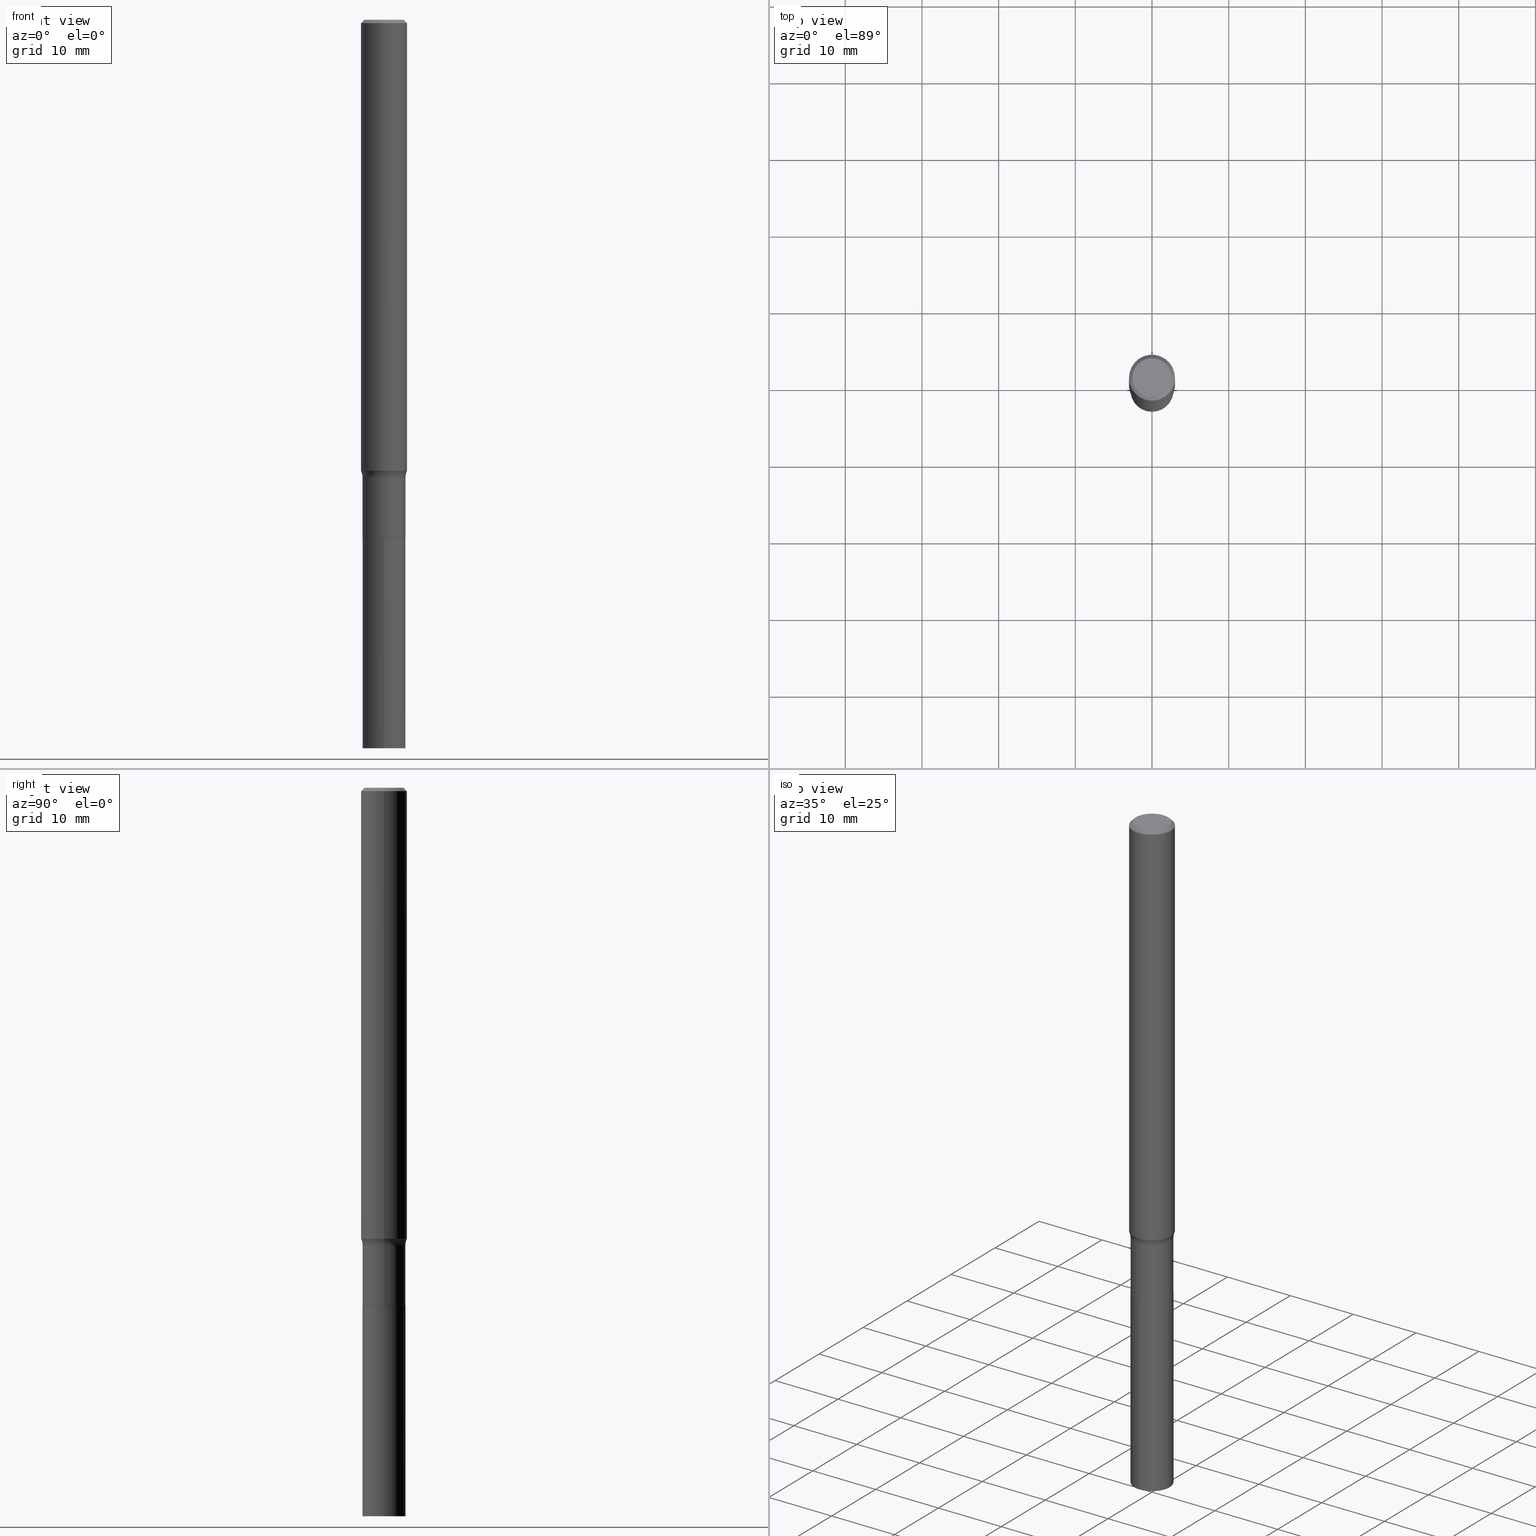
[diagram: canonical four-view strip — front | top / right | iso, engineering-drawing reading convention]
A machine part, canonical four-view strip (front | top / right | iso — engineering-drawing reading convention). The complete STEP part file that produces these views, byte-faithful:
ISO-10303-21;
HEADER;
FILE_DESCRIPTION (( 'STEP AP203' ),
    '1' );
FILE_NAME ('67842.STEP',
    '2024-04-19T16:41:17',
    ( '' ),
    ( '' ),
    'SwSTEP 2.0',
    'SolidWorks 2023',
    '' );
FILE_SCHEMA (( 'CONFIG_CONTROL_DESIGN' ));
ENDSEC;

DATA;
#1 = CARTESIAN_POINT ( 'NONE',  ( 0.000000000000000000, 0.000000000000000000, 0.000000000000000000 ) ) ;
#2 = PERSON_AND_ORGANIZATION ( #400, #102 ) ;
#3 = LINE ( 'NONE', #222, #147 ) ;
#4 = MANIFOLD_SOLID_BREP ( 'Body-Move/Copy2[1]', #71 ) ;
#5 = CARTESIAN_POINT ( 'NONE',  ( 9.139920139182118548E-29, -1.306832199932537301E-14, -3.740200000000000635 ) ) ;
#6 = ORIENTED_EDGE ( 'NONE', *, *, #265, .T. ) ;
#7 = CIRCLE ( 'NONE', #304, 0.1102500000000000008 ) ;
#8 = ADVANCED_FACE ( 'NONE', ( #72 ), #286, .T. ) ;
#9 = APPROVAL_PERSON_ORGANIZATION ( #2, #75, #213 ) ;
#10 = UNCERTAINTY_MEASURE_WITH_UNIT (LENGTH_MEASURE( 1.000000000000000082E-05 ), #232, 'distance_accuracy_value', 'NONE');
#11 = COORDINATED_UNIVERSAL_TIME_OFFSET ( 5, 0, .BEHIND. ) ;
#12 = EDGE_CURVE ( 'NONE', #459, #21, #337, .T. ) ;
#13 = DIRECTION ( 'NONE',  ( -2.445468806185136877E-29, 3.491481338843145188E-15, 1.000000000000000000 ) ) ;
#14 = LOCAL_TIME ( 12, 41, 17.00000000000000000, #259 ) ;
#15 = PERSON_AND_ORGANIZATION_ROLE ( 'creator' ) ;
#16 = CARTESIAN_POINT ( 'NONE',  ( -0.1181000000000000105, -3.234107581332223613E-15, -0.01771500000000011954 ) ) ;
#17 = CYLINDRICAL_SURFACE ( 'NONE', #365, 0.1102500000000000008 ) ;
#18 = EDGE_CURVE ( 'NONE', #115, #141, #454, .T. ) ;
#19 = DIRECTION ( 'NONE',  ( -2.445468806185136597E-29, 3.491481338843145583E-15, 1.000000000000000000 ) ) ;
#20 = APPROVAL_ROLE ( '' ) ;
#21 = VERTEX_POINT ( 'NONE', #148 ) ;
#22 = LINE ( 'NONE', #122, #207 ) ;
#23 = TOROIDAL_SURFACE ( 'NONE', #257, 0.1902499999999999747, 0.08000000000000002942 ) ;
#24 = CC_DESIGN_PERSON_AND_ORGANIZATION_ASSIGNMENT ( #97, #461, ( #86 ) ) ;
#25 = EDGE_LOOP ( 'NONE', ( #6, #319, #235, #336 ) ) ;
#26 = LINE ( 'NONE', #239, #468 ) ;
#27 = ORIENTED_EDGE ( 'NONE', *, *, #350, .F. ) ;
#28 = DIRECTION ( 'NONE',  ( 1.000000000000000000, -6.982962677686257244E-15, 0.000000000000000000 ) ) ;
#29 = CARTESIAN_POINT ( 'NONE',  ( -0.1181000000000002742, -7.245514541679521591E-15, -2.315540232929025333 ) ) ;
#30 = CARTESIAN_POINT ( 'NONE',  ( 6.498099711795145856E-29, -9.277564213574007753E-15, -2.657200000000000450 ) ) ;
#31 = DIRECTION ( 'NONE',  ( 2.445468806185136597E-29, -3.491481338843145583E-15, -1.000000000000000000 ) ) ;
#32 = CONICAL_SURFACE ( 'NONE', #92, 0.1181000000000000105, 0.7853981633974457255 ) ;
#33 = ORIENTED_EDGE ( 'NONE', *, *, #427, .T. ) ;
#34 = CARTESIAN_POINT ( 'NONE',  ( 6.498099711795145856E-29, -9.277564213574007753E-15, -2.657200000000000450 ) ) ;
#35 = ORIENTED_EDGE ( 'NONE', *, *, #265, .F. ) ;
#36 = DIRECTION ( 'NONE',  ( -1.000000000000000000, 7.105427357600995548E-15, 0.000000000000000000 ) ) ;
#37 = DIRECTION ( 'NONE',  ( -2.445468806185136597E-29, 3.491481338843145583E-15, 1.000000000000000000 ) ) ;
#38 = ORIENTED_EDGE ( 'NONE', *, *, #228, .T. ) ;
#39 = PRODUCT_RELATED_PRODUCT_CATEGORY ( 'detail', '', ( #240 ) ) ;
#40 = DIRECTION ( 'NONE',  ( 1.000000000000000000, -6.982962677686263555E-15, 4.883557194083111780E-29 ) ) ;
#41 = ORIENTED_EDGE ( 'NONE', *, *, #350, .T. ) ;
#42 = DIRECTION ( 'NONE',  ( 1.000000000000000000, -6.982962677686273021E-15, 0.000000000000000000 ) ) ;
#43 = APPROVAL ( #295, 'UNSPECIFIED' ) ;
#44 = CARTESIAN_POINT ( 'NONE',  ( 3.507850874923593654E-46, -5.008281372579124849E-32, -1.434428795841294606E-17 ) ) ;
#45 = ORIENTED_EDGE ( 'NONE', *, *, #136, .T. ) ;
#46 = ADVANCED_FACE ( 'NONE', ( #426 ), #54, .T. ) ;
#47 = SHAPE_DEFINITION_REPRESENTATION ( #176, #231 ) ;
#48 = AXIS2_PLACEMENT_3D ( 'NONE', #137, #65, #342 ) ;
#49 = DATE_TIME_ROLE ( 'creation_date' ) ;
#50 = EDGE_CURVE ( 'NONE', #238, #106, #364, .T. ) ;
#51 = CARTESIAN_POINT ( 'NONE',  ( 0.1181000000000000105, -8.865394841523550528E-16, -0.01771500000000011954 ) ) ;
#52 = DIRECTION ( 'NONE',  ( 0.7071067811864267805, -2.468850131080992517E-15, 0.7071067811866682540 ) ) ;
#53 = CARTESIAN_POINT ( 'NONE',  ( -3.796681794411323926E-29, -3.159427227388685348E-14, -3.740200000000000635 ) ) ;
#54 = CONICAL_SURFACE ( 'NONE', #369, 0.1097500000000000003, 0.7853981633972775267 ) ;
#55 = PRODUCT_DEFINITION_FORMATION_WITH_SPECIFIED_SOURCE ( 'ANY', '', #240, .NOT_KNOWN. ) ;
#56 = CARTESIAN_POINT ( 'NONE',  ( 6.498099711795145856E-29, -9.277564213574007753E-15, -2.657200000000000450 ) ) ;
#57 = ORIENTED_EDGE ( 'NONE', *, *, #377, .F. ) ;
#58 = PLANE ( 'NONE',  #351 ) ;
#59 = DIRECTION ( 'NONE',  ( -2.445468806185136597E-29, 3.491481338843145583E-15, 1.000000000000000000 ) ) ;
#60 = DIRECTION ( 'NONE',  ( -6.982962677686266711E-15, -1.000000000000000000, 3.491481338843145583E-15 ) ) ;
#61 = AXIS2_PLACEMENT_3D ( 'NONE', #415, #59, #103 ) ;
#62 = CARTESIAN_POINT ( 'NONE',  ( 5.662581409094595686E-29, -8.084665512612202155E-15, -2.315540232929025333 ) ) ;
#63 =( GEOMETRIC_REPRESENTATION_CONTEXT ( 3 ) GLOBAL_UNCERTAINTY_ASSIGNED_CONTEXT ( ( #10 ) ) GLOBAL_UNIT_ASSIGNED_CONTEXT ( ( #232, #198, #204 ) ) REPRESENTATION_CONTEXT ( 'NONE', 'WORKASPACE' ) );
#64 = LOCAL_TIME ( 12, 41, 17.00000000000000000, #362 ) ;
#65 = DIRECTION ( 'NONE',  ( -2.445468806185136597E-29, 3.491481338843145583E-15, 1.000000000000000000 ) ) ;
#66 = EDGE_CURVE ( 'NONE', #141, #21, #3, .T. ) ;
#67 = ORIENTED_EDGE ( 'NONE', *, *, #211, .F. ) ;
#68 = CARTESIAN_POINT ( 'NONE',  ( 0.1902499999999999747, -9.533838943845089210E-15, -2.350100000000000300 ) ) ;
#69 = DIRECTION ( 'NONE',  ( 1.000000000000000000, -6.982962677686266711E-15, 4.876176775795936353E-29 ) ) ;
#70 = LENGTH_MEASURE_WITH_UNIT ( LENGTH_MEASURE( 0.02539999999999999897 ), #307 );
#71 = CLOSED_SHELL ( 'NONE', ( #466, #341, #280, #457 ) ) ;
#72 = FACE_OUTER_BOUND ( 'NONE', #181, .T. ) ;
#73 = AXIS2_PLACEMENT_3D ( 'NONE', #34, #100, #169 ) ;
#74 = DIRECTION ( 'NONE',  ( 1.000000000000000000, -6.982962677686270655E-15, 0.000000000000000000 ) ) ;
#75 = APPROVAL ( #315, 'UNSPECIFIED' ) ;
#76 = EDGE_LOOP ( 'NONE', ( #171, #117, #389, #144 ) ) ;
#77 = ORIENTED_EDGE ( 'NONE', *, *, #228, .F. ) ;
#78 = VERTEX_POINT ( 'NONE', #441 ) ;
#79 = AXIS2_PLACEMENT_3D ( 'NONE', #379, #166, #36 ) ;
#80 = ORIENTED_EDGE ( 'NONE', *, *, #217, .T. ) ;
#81 = EDGE_CURVE ( 'NONE', #106, #212, #403, .T. ) ;
#82 = DIRECTION ( 'NONE',  ( 0.7071067811865456854, -7.319954787623249734E-15, -0.7071067811865493491 ) ) ;
#83 = AXIS2_PLACEMENT_3D ( 'NONE', #374, #19, #69 ) ;
#84 = ADVANCED_FACE ( 'NONE', ( #299 ), #134, .T. ) ;
#85 = AXIS2_PLACEMENT_3D ( 'NONE', #143, #273, #345 ) ;
#86 = SECURITY_CLASSIFICATION ( '', '', #264 ) ;
#87 = APPROVAL_ROLE ( '' ) ;
#88 = DIRECTION ( 'NONE',  ( -2.445468806185136597E-29, 3.491481338843145583E-15, 1.000000000000000000 ) ) ;
#89 = FACE_OUTER_BOUND ( 'NONE', #323, .T. ) ;
#90 = PERSON_AND_ORGANIZATION_ROLE ( 'creator' ) ;
#91 = DIRECTION ( 'NONE',  ( -6.982962677686266711E-15, -1.000000000000000000, 4.955733321839933614E-15 ) ) ;
#92 = AXIS2_PLACEMENT_3D ( 'NONE', #418, #309, #452 ) ;
#93 = CIRCLE ( 'NONE', #139, 0.1102500000000000008 ) ;
#94 = APPROVAL_STATUS ( 'not_yet_approved' ) ;
#95 = DIRECTION ( 'NONE',  ( -2.439354041908560263E-29, 3.500238029317971584E-15, 1.000000000000000000 ) ) ;
#96 = CARTESIAN_POINT ( 'NONE',  ( 6.498099711795145856E-29, -9.277564213574007753E-15, -2.657200000000000450 ) ) ;
#97 = PERSON_AND_ORGANIZATION ( #400, #102 ) ;
#98 = CC_DESIGN_PERSON_AND_ORGANIZATION_ASSIGNMENT ( #331, #128, ( #55 ) ) ;
#99 = ORIENTED_EDGE ( 'NONE', *, *, #325, .T. ) ;
#100 = DIRECTION ( 'NONE',  ( -2.439354041908560543E-29, 3.500238029317971584E-15, 1.000000000000000000 ) ) ;
#101 = EDGE_CURVE ( 'NONE', #155, #289, #398, .T. ) ;
#102 = ORGANIZATION ( 'UNSPECIFIED', 'UNSPECIFIED', '' ) ;
#103 = DIRECTION ( 'NONE',  ( 1.000000000000000000, -6.982962677686267499E-15, 0.000000000000000000 ) ) ;
#104 = ORIENTED_EDGE ( 'NONE', *, *, #66, .T. ) ;
#105 = CARTESIAN_POINT ( 'NONE',  ( 4.332147990156999371E-31, -6.185159191760674092E-17, -0.01771500000000011954 ) ) ;
#106 = VERTEX_POINT ( 'NONE', #303 ) ;
#107 = CARTESIAN_POINT ( 'NONE',  ( 0.000000000000000000, 0.000000000000000000, 0.000000000000000000 ) ) ;
#108 = ORIENTED_EDGE ( 'NONE', *, *, #360, .F. ) ;
#109 = PLANE ( 'NONE',  #266 ) ;
#110 = AXIS2_PLACEMENT_3D ( 'NONE', #208, #423, #250 ) ;
#111 = ORIENTED_EDGE ( 'NONE', *, *, #136, .F. ) ;
#112 = CIRCLE ( 'NONE', #159, 0.1102499999999999730 ) ;
#113 = CARTESIAN_POINT ( 'NONE',  ( -7.698716352148196691E-16, -0.1102500000000130875, -3.740200000000000191 ) ) ;
#114 = CARTESIAN_POINT ( 'NONE',  ( 0.1102499999999999869, -7.698716352149107826E-16, 5.375984895315018903E-30 ) ) ;
#115 = VERTEX_POINT ( 'NONE', #205 ) ;
#116 = DATE_AND_TIME ( #291, #406 ) ;
#117 = ORIENTED_EDGE ( 'NONE', *, *, #12, .T. ) ;
#118 = EDGE_CURVE ( 'NONE', #344, #78, #156, .T. ) ;
#119 = VERTEX_POINT ( 'NONE', #450 ) ;
#120 = LOCAL_TIME ( 12, 41, 17.00000000000000000, #11 ) ;
#121 = CC_DESIGN_SECURITY_CLASSIFICATION ( #86, ( #55 ) ) ;
#122 = CARTESIAN_POINT ( 'NONE',  ( -0.1181000000000001354, 8.391509709326792818E-16, -5.809262341591050090E-30 ) ) ;
#123 = CALENDAR_DATE ( 2024, 19, 4 ) ;
#124 = DIRECTION ( 'NONE',  ( -2.445468806185136597E-29, 3.491481338843145583E-15, 1.000000000000000000 ) ) ;
#125 = APPROVAL_DATE_TIME ( #327, #43 ) ;
#126 = DIRECTION ( 'NONE',  ( -2.439354041908560543E-29, 3.500238029317971584E-15, 1.000000000000000000 ) ) ;
#127 = DIRECTION ( 'NONE',  ( -1.000000000000000000, 6.982962677686267499E-15, 0.000000000000000000 ) ) ;
#128 = PERSON_AND_ORGANIZATION_ROLE ( 'design_supplier' ) ;
#129 = LINE ( 'NONE', #226, #249 ) ;
#130 = AXIS2_PLACEMENT_3D ( 'NONE', #105, #31, #127 ) ;
#131 = DIRECTION ( 'NONE',  ( 1.000000000000000000, -6.982962677686270655E-15, 0.000000000000000000 ) ) ;
#132 = ORIENTED_EDGE ( 'NONE', *, *, #18, .F. ) ;
#133 = CARTESIAN_POINT ( 'NONE',  ( 6.498099711795145856E-29, -9.277564213574007753E-15, -2.657200000000000450 ) ) ;
#134 = CYLINDRICAL_SURFACE ( 'NONE', #83, 0.1181000000000001354 ) ;
#135 = ORIENTED_EDGE ( 'NONE', *, *, #188, .T. ) ;
#136 = EDGE_CURVE ( 'NONE', #334, #212, #256, .T. ) ;
#137 = CARTESIAN_POINT ( 'NONE',  ( 6.496876977392053055E-29, -9.275818472904585460E-15, -2.656700000000000284 ) ) ;
#138 = ORIENTED_EDGE ( 'NONE', *, *, #338, .T. ) ;
#139 = AXIS2_PLACEMENT_3D ( 'NONE', #196, #404, #91 ) ;
#140 = FACE_OUTER_BOUND ( 'NONE', #178, .T. ) ;
#141 = VERTEX_POINT ( 'NONE', #380 ) ;
#142 = ORIENTED_EDGE ( 'NONE', *, *, #444, .F. ) ;
#143 = CARTESIAN_POINT ( 'NONE',  ( 9.139920139182118548E-29, -1.306832199932537301E-14, -3.740200000000000635 ) ) ;
#144 = ORIENTED_EDGE ( 'NONE', *, *, #188, .F. ) ;
#145 = PLANE ( 'NONE',  #436 ) ;
#146 = DIRECTION ( 'NONE',  ( 1.000000000000000000, -6.982962677686266711E-15, 4.876176775795936353E-29 ) ) ;
#147 = VECTOR ( 'NONE', #52, 39.37007874015748143 ) ;
#148 = CARTESIAN_POINT ( 'NONE',  ( 0.1102500000000000008, -1.004569010811949614E-14, -2.656700000000000284 ) ) ;
#149 = AXIS2_PLACEMENT_3D ( 'NONE', #1, #37, #146 ) ;
#150 = EDGE_LOOP ( 'NONE', ( #41, #138 ) ) ;
#151 = EDGE_CURVE ( 'NONE', #289, #155, #317, .T. ) ;
#152 = CARTESIAN_POINT ( 'NONE',  ( 5.747096241415690460E-29, -8.205330294415276873E-15, -2.350100000000000300 ) ) ;
#153 = ORIENTED_EDGE ( 'NONE', *, *, #12, .F. ) ;
#154 = LINE ( 'NONE', #371, #445 ) ;
#155 = VERTEX_POINT ( 'NONE', #29 ) ;
#156 = CIRCLE ( 'NONE', #199, 0.1102499999999999730 ) ;
#157 = AXIS2_PLACEMENT_3D ( 'NONE', #353, #172, #414 ) ;
#158 = PERSON_AND_ORGANIZATION ( #400, #102 ) ;
#159 = AXIS2_PLACEMENT_3D ( 'NONE', #152, #422, #74 ) ;
#160 = DIRECTION ( 'NONE',  ( -2.439354041908560543E-29, 3.500238029317971584E-15, 1.000000000000000000 ) ) ;
#161 = DIRECTION ( 'NONE',  ( -6.982962677686265922E-15, -1.000000000000000000, 3.500238029317971584E-15 ) ) ;
#162 = CARTESIAN_POINT ( 'NONE',  ( 0.1181000000000000105, -8.720764054544248225E-16, -0.01771500000000011954 ) ) ;
#163 = DIRECTION ( 'NONE',  ( -6.982962677686266711E-15, -1.000000000000000000, 4.955733321839933614E-15 ) ) ;
#164 = EDGE_LOOP ( 'NONE', ( #277, #244, #210, #45 ) ) ;
#165 = ADVANCED_FACE ( 'NONE', ( #170 ), #32, .T. ) ;
#166 = DIRECTION ( 'NONE',  ( 7.105427357601001859E-15, 1.000000000000000000, -3.491481338843145583E-15 ) ) ;
#167 = DIRECTION ( 'NONE',  ( -2.445468806185136597E-29, 3.491481338843145583E-15, 1.000000000000000000 ) ) ;
#168 = ORIENTED_EDGE ( 'NONE', *, *, #440, .F. ) ;
#169 = DIRECTION ( 'NONE',  ( -6.982962677686266711E-15, -1.000000000000000000, 4.955733321839933614E-15 ) ) ;
#170 = FACE_OUTER_BOUND ( 'NONE', #164, .T. ) ;
#171 = ORIENTED_EDGE ( 'NONE', *, *, #217, .F. ) ;
#172 = DIRECTION ( 'NONE',  ( -2.445468806185136597E-29, 3.491481338843145583E-15, 1.000000000000000000 ) ) ;
#173 = AXIS2_PLACEMENT_3D ( 'NONE', #285, #185, #320 ) ;
#174 = AXIS2_PLACEMENT_3D ( 'NONE', #133, #412, #433 ) ;
#175 = DIRECTION ( 'NONE',  ( -2.439354041908560543E-29, 3.500238029317971584E-15, 1.000000000000000000 ) ) ;
#176 = PRODUCT_DEFINITION_SHAPE ( 'NONE', 'NONE',  #363 ) ;
#177 = ADVANCED_FACE ( 'NONE', ( #140 ), #348, .T. ) ;
#178 = EDGE_LOOP ( 'NONE', ( #293, #308, #384, #413 ) ) ;
#179 = LINE ( 'NONE', #242, #392 ) ;
#180 = LINE ( 'NONE', #114, #292 ) ;
#181 = EDGE_LOOP ( 'NONE', ( #241, #38, #168, #108 ) ) ;
#182 = CC_DESIGN_PERSON_AND_ORGANIZATION_ASSIGNMENT ( #297, #15, ( #55 ) ) ;
#183 = ORIENTED_EDGE ( 'NONE', *, *, #377, .T. ) ;
#184 = ADVANCED_FACE ( 'NONE', ( #263 ), #435, .F. ) ;
#185 = DIRECTION ( 'NONE',  ( -2.445468806185136597E-29, 3.491481338843145583E-15, 1.000000000000000000 ) ) ;
#186 = DIRECTION ( 'NONE',  ( -1.000000000000000000, 6.982962677686265922E-15, -4.876176775795935793E-29 ) ) ;
#187 = ORIENTED_EDGE ( 'NONE', *, *, #360, .T. ) ;
#188 = EDGE_CURVE ( 'NONE', #78, #344, #112, .T. ) ;
#189 = VECTOR ( 'NONE', #13, 39.37007874015748143 ) ;
#190 = DIRECTION ( 'NONE',  ( -2.445468806185136877E-29, 3.491481338843145188E-15, 1.000000000000000000 ) ) ;
#191 = CLOSED_SHELL ( 'NONE', ( #237, #177, #8, #302, #206, #294, #184, #84, #165, #370, #437, #46 ) ) ;
#192 = CC_DESIGN_APPROVAL ( #43, ( #363 ) ) ;
#193 = DIRECTION ( 'NONE',  ( 1.000000000000000000, -6.982962677686266711E-15, 4.875668750515085695E-29 ) ) ;
#194 = FACE_OUTER_BOUND ( 'NONE', #416, .T. ) ;
#195 = ORIENTED_EDGE ( 'NONE', *, *, #18, .T. ) ;
#196 = CARTESIAN_POINT ( 'NONE',  ( 6.498099711795145856E-29, -9.277564213574007753E-15, -2.657200000000000450 ) ) ;
#197 = ORIENTED_EDGE ( 'NONE', *, *, #385, .T. ) ;
#198 =( NAMED_UNIT ( * ) PLANE_ANGLE_UNIT ( ) SI_UNIT ( $, .RADIAN. ) );
#199 = AXIS2_PLACEMENT_3D ( 'NONE', #340, #167, #131 ) ;
#200 = AXIS2_PLACEMENT_3D ( 'NONE', #53, #230, #161 ) ;
#201 = FACE_OUTER_BOUND ( 'NONE', #270, .T. ) ;
#202 = DIRECTION ( 'NONE',  ( -2.445468806185136597E-29, 3.491481338843145583E-15, 1.000000000000000000 ) ) ;
#203 = VERTEX_POINT ( 'NONE', #354 ) ;
#204 =( NAMED_UNIT ( * ) SI_UNIT ( $, .STERADIAN. ) SOLID_ANGLE_UNIT ( ) );
#205 = CARTESIAN_POINT ( 'NONE',  ( -0.1097500000000000003, -8.495094333903187286E-15, -2.657200000000000450 ) ) ;
#206 = ADVANCED_FACE ( 'NONE', ( #287 ), #429, .T. ) ;
#207 = VECTOR ( 'NONE', #328, 39.37007874015748143 ) ;
#208 = CARTESIAN_POINT ( 'NONE',  ( 0.000000000000000000, 0.000000000000000000, 0.000000000000000000 ) ) ;
#209 = DIRECTION ( 'NONE',  ( -2.439354041908560263E-29, 3.500238029317971584E-15, 1.000000000000000000 ) ) ;
#210 = ORIENTED_EDGE ( 'NONE', *, *, #453, .T. ) ;
#211 = EDGE_CURVE ( 'NONE', #21, #344, #180, .T. ) ;
#212 = VERTEX_POINT ( 'NONE', #51 ) ;
#213 = APPROVAL_ROLE ( '' ) ;
#214 = CIRCLE ( 'NONE', #432, 0.08000000000000002942 ) ;
#215 = DIRECTION ( 'NONE',  ( -2.445468806185136597E-29, 3.491481338843145583E-15, 1.000000000000000000 ) ) ;
#216 = EDGE_LOOP ( 'NONE', ( #274, #195, #104, #153 ) ) ;
#217 = EDGE_CURVE ( 'NONE', #459, #78, #252, .T. ) ;
#218 = AXIS2_PLACEMENT_3D ( 'NONE', #361, #247, #313 ) ;
#219 = CIRCLE ( 'NONE', #48, 0.1102500000000000008 ) ;
#220 = CALENDAR_DATE ( 2024, 19, 4 ) ;
#221 = FACE_OUTER_BOUND ( 'NONE', #359, .T. ) ;
#222 = CARTESIAN_POINT ( 'NONE',  ( 0.1097500000000000003, -1.004394436745007543E-14, -2.657200000000000450 ) ) ;
#223 = DIRECTION ( 'NONE',  ( 1.000000000000000000, -6.982962677686263555E-15, 4.883557194083111780E-29 ) ) ;
#224 = APPLICATION_CONTEXT ( 'configuration controlled 3d designs of mechanical parts and assemblies' ) ;
#225 = CIRCLE ( 'NONE', #157, 0.1181000000000000105 ) ;
#226 = CARTESIAN_POINT ( 'NONE',  ( 0.1181000000000001354, -8.246878922347490515E-16, 5.758764772215007447E-30 ) ) ;
#227 = EDGE_LOOP ( 'NONE', ( #357, #99 ) ) ;
#228 = EDGE_CURVE ( 'NONE', #155, #334, #22, .T. ) ;
#229 = FACE_OUTER_BOUND ( 'NONE', #227, .T. ) ;
#230 = DIRECTION ( 'NONE',  ( -2.439354041908560263E-29, 3.500238029317971584E-15, 1.000000000000000000 ) ) ;
#231 = ADVANCED_BREP_SHAPE_REPRESENTATION ( '67842', ( #4, #312, #405 ), #63 ) ;
#232 =( CONVERSION_BASED_UNIT ( 'INCH', #70 ) LENGTH_UNIT ( ) NAMED_UNIT ( #253 ) );
#233 = CIRCLE ( 'NONE', #85, 0.1102500000000000285 ) ;
#234 = CARTESIAN_POINT ( 'NONE',  ( 5.662581409094595686E-29, -8.084665512612202155E-15, -2.315540232929025333 ) ) ;
#235 = ORIENTED_EDGE ( 'NONE', *, *, #390, .F. ) ;
#236 = CYLINDRICAL_SURFACE ( 'NONE', #73, 0.1102500000000000008 ) ;
#237 = ADVANCED_FACE ( 'NONE', ( #394 ), #438, .T. ) ;
#238 = VERTEX_POINT ( 'NONE', #301 ) ;
#239 = CARTESIAN_POINT ( 'NONE',  ( -7.698716352148458988E-16, -0.1102500000000092711, -2.657199999999999562 ) ) ;
#240 = PRODUCT ( '67842', '67842', '', ( #251 ) ) ;
#241 = ORIENTED_EDGE ( 'NONE', *, *, #151, .T. ) ;
#242 = CARTESIAN_POINT ( 'NONE',  ( -0.1181000000000000105, 7.628363003171413738E-16, -0.01771500000000011954 ) ) ;
#243 = AXIS2_PLACEMENT_3D ( 'NONE', #5, #175, #424 ) ;
#244 = ORIENTED_EDGE ( 'NONE', *, *, #50, .F. ) ;
#245 = EDGE_LOOP ( 'NONE', ( #352, #80, #388, #67 ) ) ;
#246 = APPROVAL_DATE_TIME ( #116, #75 ) ;
#247 = DIRECTION ( 'NONE',  ( -2.445468806185136597E-29, 3.491481338843145583E-15, 1.000000000000000000 ) ) ;
#248 = AXIS2_PLACEMENT_3D ( 'NONE', #355, #316, #465 ) ;
#249 = VECTOR ( 'NONE', #267, 39.37007874015748143 ) ;
#250 = DIRECTION ( 'NONE',  ( 1.000000000000000000, -6.982962677686266711E-15, 4.876176775795936353E-29 ) ) ;
#251 = MECHANICAL_CONTEXT ( 'NONE', #224, 'mechanical' ) ;
#252 = LINE ( 'NONE', #442, #189 ) ;
#253 = DIMENSIONAL_EXPONENTS ( 1.000000000000000000, 0.000000000000000000, 0.000000000000000000, 0.000000000000000000, 0.000000000000000000, 0.000000000000000000, 0.000000000000000000 ) ;
#254 = CC_DESIGN_DATE_AND_TIME_ASSIGNMENT ( #255, #49, ( #363 ) ) ;
#255 = DATE_AND_TIME ( #123, #456 ) ;
#256 = CIRCLE ( 'NONE', #61, 0.1181000000000000105 ) ;
#257 = AXIS2_PLACEMENT_3D ( 'NONE', #330, #271, #223 ) ;
#258 = EDGE_CURVE ( 'NONE', #119, #203, #262, .T. ) ;
#259 = COORDINATED_UNIVERSAL_TIME_OFFSET ( 5, 0, .BEHIND. ) ;
#260 = DIRECTION ( 'NONE',  ( 1.000000000000000000, -6.982962677686266711E-15, 4.876176775795936353E-29 ) ) ;
#261 = DATE_AND_TIME ( #300, #120 ) ;
#262 = LINE ( 'NONE', #439, #276 ) ;
#263 = FACE_OUTER_BOUND ( 'NONE', #455, .T. ) ;
#264 = SECURITY_CLASSIFICATION_LEVEL ( 'unclassified' ) ;
#265 = EDGE_CURVE ( 'NONE', #141, #115, #318, .T. ) ;
#266 = AXIS2_PLACEMENT_3D ( 'NONE', #30, #383, #449 ) ;
#267 = DIRECTION ( 'NONE',  ( -2.445468806185136877E-29, 3.491481338843145188E-15, 1.000000000000000000 ) ) ;
#268 = APPROVAL ( #94, 'UNSPECIFIED' ) ;
#269 = CC_DESIGN_APPROVAL ( #268, ( #55 ) ) ;
#270 = EDGE_LOOP ( 'NONE', ( #35, #132 ) ) ;
#271 = DIRECTION ( 'NONE',  ( -2.445468806185136597E-29, 3.491481338843145583E-15, 1.000000000000000000 ) ) ;
#272 = ORIENTED_EDGE ( 'NONE', *, *, #101, .F. ) ;
#273 = DIRECTION ( 'NONE',  ( -2.439354041908560543E-29, 3.500238029317971584E-15, 1.000000000000000000 ) ) ;
#274 = ORIENTED_EDGE ( 'NONE', *, *, #321, .F. ) ;
#275 = CARTESIAN_POINT ( 'NONE',  ( 6.498099711795145856E-29, -9.277564213574007753E-15, -2.657200000000000450 ) ) ;
#276 = VECTOR ( 'NONE', #95, 39.37007874015748143 ) ;
#277 = ORIENTED_EDGE ( 'NONE', *, *, #81, .F. ) ;
#278 = DIRECTION ( 'NONE',  ( -2.445468806185136597E-29, 3.491481338843145583E-15, 1.000000000000000000 ) ) ;
#279 = APPLICATION_PROTOCOL_DEFINITION ( 'international standard', 'config_control_design', 1994, #224 ) ;
#280 = ADVANCED_FACE ( 'NONE', ( #221 ), #17, .T. ) ;
#281 = CALENDAR_DATE ( 2024, 19, 4 ) ;
#282 = ORIENTED_EDGE ( 'NONE', *, *, #410, .F. ) ;
#283 = CARTESIAN_POINT ( 'NONE',  ( -0.1102500000000000008, -7.957201017484421002E-15, -2.656700000000000284 ) ) ;
#284 = CIRCLE ( 'NONE', #243, 0.1102500000000000285 ) ;
#285 = CARTESIAN_POINT ( 'NONE',  ( 7.015701749847187307E-46, -1.001656274515824970E-31, -2.868857591682589212E-17 ) ) ;
#286 = CYLINDRICAL_SURFACE ( 'NONE', #110, 0.1181000000000001354 ) ;
#287 = FACE_OUTER_BOUND ( 'NONE', #245, .T. ) ;
#288 = CC_DESIGN_DATE_AND_TIME_ASSIGNMENT ( #434, #387, ( #86 ) ) ;
#289 = VERTEX_POINT ( 'NONE', #296 ) ;
#290 = DIRECTION ( 'NONE',  ( -6.982962677686266711E-15, -1.000000000000000000, 4.955733321839933614E-15 ) ) ;
#291 = CALENDAR_DATE ( 2024, 19, 4 ) ;
#292 = VECTOR ( 'NONE', #190, 39.37007874015748143 ) ;
#293 = ORIENTED_EDGE ( 'NONE', *, *, #325, .F. ) ;
#294 = ADVANCED_FACE ( 'NONE', ( #447 ), #443, .T. ) ;
#295 = APPROVAL_STATUS ( 'not_yet_approved' ) ;
#296 = CARTESIAN_POINT ( 'NONE',  ( 0.1181000000000002742, -8.909353404846951995E-15, -2.315540232929025333 ) ) ;
#297 = PERSON_AND_ORGANIZATION ( #400, #102 ) ;
#298 = CARTESIAN_POINT ( 'NONE',  ( 0.1102499999999999730, -8.975201929630187557E-15, -2.350100000000000300 ) ) ;
#299 = FACE_OUTER_BOUND ( 'NONE', #428, .T. ) ;
#300 = CALENDAR_DATE ( 2024, 19, 4 ) ;
#301 = CARTESIAN_POINT ( 'NONE',  ( -0.1003850000000000159, 7.319105043583386689E-16, -2.868857591683090262E-17 ) ) ;
#302 = ADVANCED_FACE ( 'NONE', ( #194 ), #23, .F. ) ;
#303 = CARTESIAN_POINT ( 'NONE',  ( 0.1003850000000000159, -7.803837484803601317E-16, -2.868857591682071522E-17 ) ) ;
#304 = AXIS2_PLACEMENT_3D ( 'NONE', #56, #126, #163 ) ;
#305 = DIRECTION ( 'NONE',  ( 2.438088387897960049E-29, -3.491481338843145188E-15, -1.000000000000000000 ) ) ;
#306 = CC_DESIGN_APPROVAL ( #75, ( #86 ) ) ;
#307 =( LENGTH_UNIT ( ) NAMED_UNIT ( * ) SI_UNIT ( $, .METRE. ) );
#308 = ORIENTED_EDGE ( 'NONE', *, *, #81, .T. ) ;
#309 = DIRECTION ( 'NONE',  ( 2.445468806185136597E-29, -3.491481338843145583E-15, -1.000000000000000000 ) ) ;
#310 = ORIENTED_EDGE ( 'NONE', *, *, #427, .F. ) ;
#311 = APPROVAL_PERSON_ORGANIZATION ( #401, #268, #87 ) ;
#312 = MANIFOLD_SOLID_BREP ( 'Body-Move/Copy2[2]', #191 ) ;
#313 = DIRECTION ( 'NONE',  ( 1.000000000000000000, -6.982962677686269077E-15, 0.000000000000000000 ) ) ;
#314 = DIRECTION ( 'NONE',  ( -0.7071067811865456854, 2.468850131082237733E-15, -0.7071067811865493491 ) ) ;
#315 = APPROVAL_STATUS ( 'not_yet_approved' ) ;
#316 = DIRECTION ( 'NONE',  ( -2.445468806185136597E-29, 3.491481338843145583E-15, 1.000000000000000000 ) ) ;
#317 = CIRCLE ( 'NONE', #431, 0.1181000000000002742 ) ;
#318 = CIRCLE ( 'NONE', #339, 0.1097500000000000003 ) ;
#319 = ORIENTED_EDGE ( 'NONE', *, *, #321, .T. ) ;
#320 = DIRECTION ( 'NONE',  ( 1.000000000000000000, -6.982962677686266711E-15, 4.875668750515085695E-29 ) ) ;
#321 = EDGE_CURVE ( 'NONE', #115, #459, #154, .T. ) ;
#322 = CARTESIAN_POINT ( 'NONE',  ( -7.698716352148458988E-16, -0.1102500000000092711, -2.657199999999999562 ) ) ;
#323 = EDGE_LOOP ( 'NONE', ( #57, #310 ) ) ;
#324 = CIRCLE ( 'NONE', #79, 0.08000000000000002942 ) ;
#325 = EDGE_CURVE ( 'NONE', #106, #238, #425, .T. ) ;
#326 = COORDINATED_UNIVERSAL_TIME_OFFSET ( 5, 0, .BEHIND. ) ;
#327 = DATE_AND_TIME ( #220, #14 ) ;
#328 = DIRECTION ( 'NONE',  ( -2.445468806185136877E-29, 3.491481338843145188E-15, 1.000000000000000000 ) ) ;
#329 = APPROVAL_DATE_TIME ( #261, #268 ) ;
#330 = CARTESIAN_POINT ( 'NONE',  ( 5.747096241415690460E-29, -8.205330294415276873E-15, -2.350100000000000300 ) ) ;
#331 = PERSON_AND_ORGANIZATION ( #400, #102 ) ;
#332 = CARTESIAN_POINT ( 'NONE',  ( 7.015701749847187307E-46, -1.001656274515824970E-31, -2.868857591682589212E-17 ) ) ;
#333 = DIRECTION ( 'NONE',  ( 1.000000000000000000, -6.982962677686273021E-15, 0.000000000000000000 ) ) ;
#334 = VERTEX_POINT ( 'NONE', #16 ) ;
#335 = DIRECTION ( 'NONE',  ( -0.7071067811864267805, 7.493145998869918709E-15, 0.7071067811866682540 ) ) ;
#336 = ORIENTED_EDGE ( 'NONE', *, *, #66, .F. ) ;
#337 = CIRCLE ( 'NONE', #218, 0.1102500000000000008 ) ;
#338 = EDGE_CURVE ( 'NONE', #203, #375, #7, .T. ) ;
#339 = AXIS2_PLACEMENT_3D ( 'NONE', #96, #88, #373 ) ;
#340 = CARTESIAN_POINT ( 'NONE',  ( 5.747096241415690460E-29, -8.205330294415276873E-15, -2.350100000000000300 ) ) ;
#341 = ADVANCED_FACE ( 'NONE', ( #89 ), #367, .F. ) ;
#342 = DIRECTION ( 'NONE',  ( 1.000000000000000000, -6.982962677686269077E-15, 0.000000000000000000 ) ) ;
#343 = DIRECTION ( 'NONE',  ( 1.000000000000000000, -6.982962677686273021E-15, 0.000000000000000000 ) ) ;
#344 = VERTEX_POINT ( 'NONE', #298 ) ;
#345 = DIRECTION ( 'NONE',  ( -6.982962677686266711E-15, -1.000000000000000000, 4.955733321839932036E-15 ) ) ;
#346 = DIRECTION ( 'NONE',  ( -2.445468806185136597E-29, 3.491481338843145583E-15, 1.000000000000000000 ) ) ;
#347 = ORIENTED_EDGE ( 'NONE', *, *, #118, .T. ) ;
#348 = CONICAL_SURFACE ( 'NONE', #130, 0.1181000000000000105, 0.7853981633974457255 ) ;
#349 = DIRECTION ( 'NONE',  ( 0.000000000000000000, 0.000000000000000000, 1.000000000000000000 ) ) ;
#350 = EDGE_CURVE ( 'NONE', #375, #203, #93, .T. ) ;
#351 = AXIS2_PLACEMENT_3D ( 'NONE', #44, #305, #186 ) ;
#352 = ORIENTED_EDGE ( 'NONE', *, *, #390, .T. ) ;
#353 = CARTESIAN_POINT ( 'NONE',  ( 4.332147990156999371E-31, -6.185159191760674092E-17, -0.01771500000000011954 ) ) ;
#354 = CARTESIAN_POINT ( 'NONE',  ( 7.833733661756019683E-16, 0.1102499999999907165, -2.657200000000000895 ) ) ;
#355 = CARTESIAN_POINT ( 'NONE',  ( 6.498099711795145856E-29, -9.277564213574007753E-15, -2.657200000000000450 ) ) ;
#356 = COORDINATED_UNIVERSAL_TIME_OFFSET ( 5, 0, .BEHIND. ) ;
#357 = ORIENTED_EDGE ( 'NONE', *, *, #50, .T. ) ;
#358 = APPROVAL_PERSON_ORGANIZATION ( #158, #43, #20 ) ;
#359 = EDGE_LOOP ( 'NONE', ( #372, #33, #393, #409 ) ) ;
#360 = EDGE_CURVE ( 'NONE', #289, #212, #129, .T. ) ;
#361 = CARTESIAN_POINT ( 'NONE',  ( 6.496876977392053055E-29, -9.275818472904585460E-15, -2.656700000000000284 ) ) ;
#362 = COORDINATED_UNIVERSAL_TIME_OFFSET ( 5, 0, .BEHIND. ) ;
#363 = PRODUCT_DEFINITION ( 'UNKNOWN', '', #55, #396 ) ;
#364 = CIRCLE ( 'NONE', #173, 0.1003850000000000159 ) ;
#365 = AXIS2_PLACEMENT_3D ( 'NONE', #366, #160, #290 ) ;
#366 = CARTESIAN_POINT ( 'NONE',  ( 6.498099711795145856E-29, -9.277564213574007753E-15, -2.657200000000000450 ) ) ;
#367 = PLANE ( 'NONE',  #200 ) ;
#368 = CC_DESIGN_PERSON_AND_ORGANIZATION_ASSIGNMENT ( #463, #397, ( #240 ) ) ;
#369 = AXIS2_PLACEMENT_3D ( 'NONE', #391, #215, #42 ) ;
#370 = ADVANCED_FACE ( 'NONE', ( #229 ), #58, .F. ) ;
#371 = CARTESIAN_POINT ( 'NONE',  ( -0.1097500000000000003, -8.497743561077297698E-15, -2.657200000000000450 ) ) ;
#372 = ORIENTED_EDGE ( 'NONE', *, *, #258, .F. ) ;
#373 = DIRECTION ( 'NONE',  ( 1.000000000000000000, -6.982962677686273021E-15, 0.000000000000000000 ) ) ;
#374 = CARTESIAN_POINT ( 'NONE',  ( 0.000000000000000000, 0.000000000000000000, 0.000000000000000000 ) ) ;
#375 = VERTEX_POINT ( 'NONE', #322 ) ;
#376 = DIRECTION ( 'NONE',  ( 6.982962677686265922E-15, 1.000000000000000000, -3.500238029317971584E-15 ) ) ;
#377 = EDGE_CURVE ( 'NONE', #382, #119, #284, .T. ) ;
#378 = AXIS2_PLACEMENT_3D ( 'NONE', #62, #346, #333 ) ;
#379 = CARTESIAN_POINT ( 'NONE',  ( -0.1902499999999999747, -6.853522739631686844E-15, -2.350100000000000300 ) ) ;
#380 = CARTESIAN_POINT ( 'NONE',  ( 0.1097500000000000003, -1.004394436745007543E-14, -2.657200000000000450 ) ) ;
#381 = DIRECTION ( 'NONE',  ( 2.439354041908560263E-29, -3.500238029317971584E-15, -1.000000000000000000 ) ) ;
#382 = VERTEX_POINT ( 'NONE', #113 ) ;
#383 = DIRECTION ( 'NONE',  ( -2.438088387897960049E-29, 3.491481338843145188E-15, 1.000000000000000000 ) ) ;
#384 = ORIENTED_EDGE ( 'NONE', *, *, #440, .T. ) ;
#385 = EDGE_CURVE ( 'NONE', #289, #344, #214, .T. ) ;
#386 = AXIS2_PLACEMENT_3D ( 'NONE', #458, #278, #40 ) ;
#387 = DATE_TIME_ROLE ( 'classification_date' ) ;
#388 = ORIENTED_EDGE ( 'NONE', *, *, #118, .F. ) ;
#389 = ORIENTED_EDGE ( 'NONE', *, *, #211, .T. ) ;
#390 = EDGE_CURVE ( 'NONE', #21, #459, #219, .T. ) ;
#391 = CARTESIAN_POINT ( 'NONE',  ( 6.498099711795145856E-29, -9.277564213574007753E-15, -2.657200000000000450 ) ) ;
#392 = VECTOR ( 'NONE', #314, 39.37007874015748143 ) ;
#393 = ORIENTED_EDGE ( 'NONE', *, *, #444, .T. ) ;
#394 = FACE_OUTER_BOUND ( 'NONE', #25, .T. ) ;
#395 = PERSON_AND_ORGANIZATION ( #400, #102 ) ;
#396 = DESIGN_CONTEXT ( 'detailed design', #421, 'design' ) ;
#397 = PERSON_AND_ORGANIZATION_ROLE ( 'design_owner' ) ;
#398 = CIRCLE ( 'NONE', #378, 0.1181000000000002742 ) ;
#399 = AXIS2_PLACEMENT_3D ( 'NONE', #332, #402, #193 ) ;
#400 = PERSON ( 'UNSPECIFIED', 'UNSPECIFIED', 'UNSPECIFIED', ('UNSPECIFIED'), ('UNSPECIFIED'), ('UNSPECIFIED') ) ;
#401 = PERSON_AND_ORGANIZATION ( #400, #102 ) ;
#402 = DIRECTION ( 'NONE',  ( -2.445468806185136597E-29, 3.491481338843145583E-15, 1.000000000000000000 ) ) ;
#403 = LINE ( 'NONE', #162, #467 ) ;
#404 = DIRECTION ( 'NONE',  ( -2.439354041908560543E-29, 3.500238029317971584E-15, 1.000000000000000000 ) ) ;
#405 = AXIS2_PLACEMENT_3D ( 'NONE', #107, #349, #420 ) ;
#406 = LOCAL_TIME ( 12, 41, 17.00000000000000000, #356 ) ;
#407 = CARTESIAN_POINT ( 'NONE',  ( 0.000000000000000000, 0.000000000000000000, 0.000000000000000000 ) ) ;
#408 = CC_DESIGN_PERSON_AND_ORGANIZATION_ASSIGNMENT ( #395, #90, ( #363 ) ) ;
#409 = ORIENTED_EDGE ( 'NONE', *, *, #338, .F. ) ;
#410 = EDGE_CURVE ( 'NONE', #155, #78, #324, .T. ) ;
#411 = APPLICATION_PROTOCOL_DEFINITION ( 'international standard', 'config_control_design', 1994, #421 ) ;
#412 = DIRECTION ( 'NONE',  ( -2.445468806185136597E-29, 3.491481338843145583E-15, 1.000000000000000000 ) ) ;
#413 = ORIENTED_EDGE ( 'NONE', *, *, #453, .F. ) ;
#414 = DIRECTION ( 'NONE',  ( 1.000000000000000000, -6.982962677686267499E-15, 0.000000000000000000 ) ) ;
#415 = CARTESIAN_POINT ( 'NONE',  ( 4.332147990156999371E-31, -6.185159191760674092E-17, -0.01771500000000011954 ) ) ;
#416 = EDGE_LOOP ( 'NONE', ( #272, #462, #135, #448 ) ) ;
#417 = AXIS2_PLACEMENT_3D ( 'NONE', #407, #124, #260 ) ;
#418 = CARTESIAN_POINT ( 'NONE',  ( 4.332147990156999371E-31, -6.185159191760674092E-17, -0.01771500000000011954 ) ) ;
#419 = ORIENTED_EDGE ( 'NONE', *, *, #101, .T. ) ;
#420 = DIRECTION ( 'NONE',  ( 1.000000000000000000, 0.000000000000000000, 0.000000000000000000 ) ) ;
#421 = APPLICATION_CONTEXT ( 'configuration controlled 3d designs of mechanical parts and assemblies' ) ;
#422 = DIRECTION ( 'NONE',  ( -2.445468806185136597E-29, 3.491481338843145583E-15, 1.000000000000000000 ) ) ;
#423 = DIRECTION ( 'NONE',  ( -2.445468806185136597E-29, 3.491481338843145583E-15, 1.000000000000000000 ) ) ;
#424 = DIRECTION ( 'NONE',  ( -6.982962677686266711E-15, -1.000000000000000000, 4.955733321839932036E-15 ) ) ;
#425 = CIRCLE ( 'NONE', #399, 0.1003850000000000159 ) ;
#426 = FACE_OUTER_BOUND ( 'NONE', #216, .T. ) ;
#427 = EDGE_CURVE ( 'NONE', #119, #382, #233, .T. ) ;
#428 = EDGE_LOOP ( 'NONE', ( #77, #419, #187, #111 ) ) ;
#429 = CYLINDRICAL_SURFACE ( 'NONE', #149, 0.1102499999999999869 ) ;
#430 = ORIENTED_EDGE ( 'NONE', *, *, #258, .T. ) ;
#431 = AXIS2_PLACEMENT_3D ( 'NONE', #234, #202, #343 ) ;
#432 = AXIS2_PLACEMENT_3D ( 'NONE', #68, #60, #28 ) ;
#433 = DIRECTION ( 'NONE',  ( 1.000000000000000000, -6.982962677686273021E-15, 0.000000000000000000 ) ) ;
#434 = DATE_AND_TIME ( #281, #64 ) ;
#435 = TOROIDAL_SURFACE ( 'NONE', #386, 0.1902499999999999747, 0.08000000000000002942 ) ;
#436 = AXIS2_PLACEMENT_3D ( 'NONE', #275, #381, #376 ) ;
#437 = ADVANCED_FACE ( 'NONE', ( #201 ), #109, .F. ) ;
#438 = CONICAL_SURFACE ( 'NONE', #174, 0.1097500000000000003, 0.7853981633972775267 ) ;
#439 = CARTESIAN_POINT ( 'NONE',  ( 7.833733661755754429E-16, 0.1102499999999907304, -2.657200000000000895 ) ) ;
#440 = EDGE_CURVE ( 'NONE', #212, #334, #225, .T. ) ;
#441 = CARTESIAN_POINT ( 'NONE',  ( -0.1102499999999999730, -7.957201017484421002E-15, -2.350100000000000300 ) ) ;
#442 = CARTESIAN_POINT ( 'NONE',  ( -0.1102499999999999869, 7.833733661755103618E-16, -5.423125937006033469E-30 ) ) ;
#443 = CYLINDRICAL_SURFACE ( 'NONE', #417, 0.1102499999999999869 ) ;
#444 = EDGE_CURVE ( 'NONE', #382, #375, #26, .T. ) ;
#445 = VECTOR ( 'NONE', #335, 39.37007874015748143 ) ;
#446 = ORIENTED_EDGE ( 'NONE', *, *, #151, .F. ) ;
#447 = FACE_OUTER_BOUND ( 'NONE', #76, .T. ) ;
#448 = ORIENTED_EDGE ( 'NONE', *, *, #385, .F. ) ;
#449 = DIRECTION ( 'NONE',  ( 1.000000000000000000, -6.982962677686265922E-15, 4.876176775795935793E-29 ) ) ;
#450 = CARTESIAN_POINT ( 'NONE',  ( 7.833733661755886563E-16, 0.1102499999999869557, -3.740200000000001079 ) ) ;
#451 = EDGE_LOOP ( 'NONE', ( #183, #430, #27, #142 ) ) ;
#452 = DIRECTION ( 'NONE',  ( -1.000000000000000000, 6.982962677686267499E-15, 0.000000000000000000 ) ) ;
#453 = EDGE_CURVE ( 'NONE', #238, #334, #179, .T. ) ;
#454 = CIRCLE ( 'NONE', #248, 0.1097500000000000003 ) ;
#455 = EDGE_LOOP ( 'NONE', ( #282, #446, #197, #347 ) ) ;
#456 = LOCAL_TIME ( 12, 41, 17.00000000000000000, #326 ) ;
#457 = ADVANCED_FACE ( 'NONE', ( #464 ), #145, .F. ) ;
#458 = CARTESIAN_POINT ( 'NONE',  ( 5.747096241415690460E-29, -8.205330294415276873E-15, -2.350100000000000300 ) ) ;
#459 = VERTEX_POINT ( 'NONE', #283 ) ;
#460 = FACE_OUTER_BOUND ( 'NONE', #451, .T. ) ;
#461 = PERSON_AND_ORGANIZATION_ROLE ( 'classification_officer' ) ;
#462 = ORIENTED_EDGE ( 'NONE', *, *, #410, .T. ) ;
#463 = PERSON_AND_ORGANIZATION ( #400, #102 ) ;
#464 = FACE_OUTER_BOUND ( 'NONE', #150, .T. ) ;
#465 = DIRECTION ( 'NONE',  ( 1.000000000000000000, -6.982962677686273021E-15, 0.000000000000000000 ) ) ;
#466 = ADVANCED_FACE ( 'NONE', ( #460 ), #236, .T. ) ;
#467 = VECTOR ( 'NONE', #82, 39.37007874015748143 ) ;
#468 = VECTOR ( 'NONE', #209, 39.37007874015748143 ) ;
ENDSEC;
END-ISO-10303-21;
